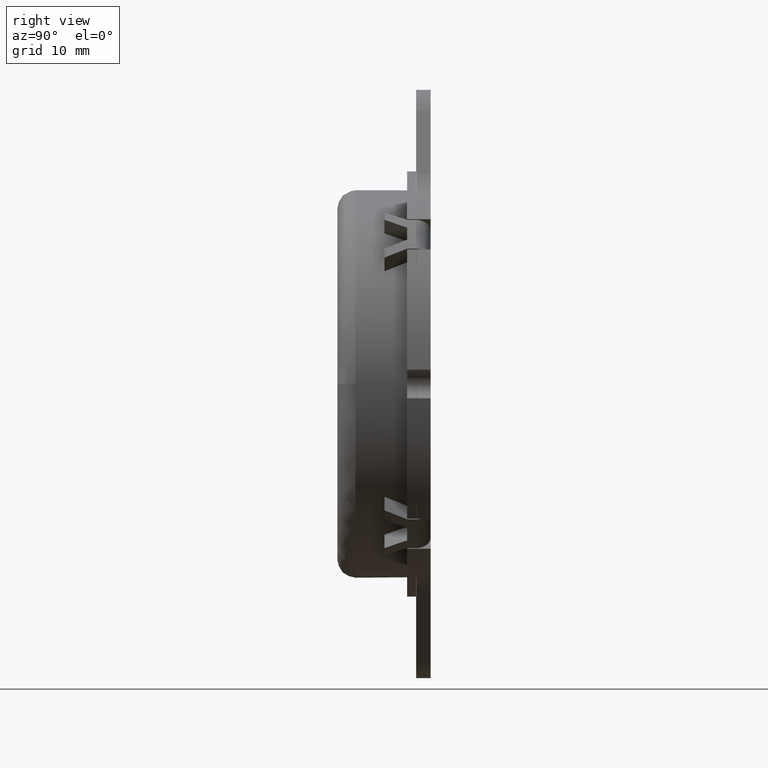
[diagram: clean part render]
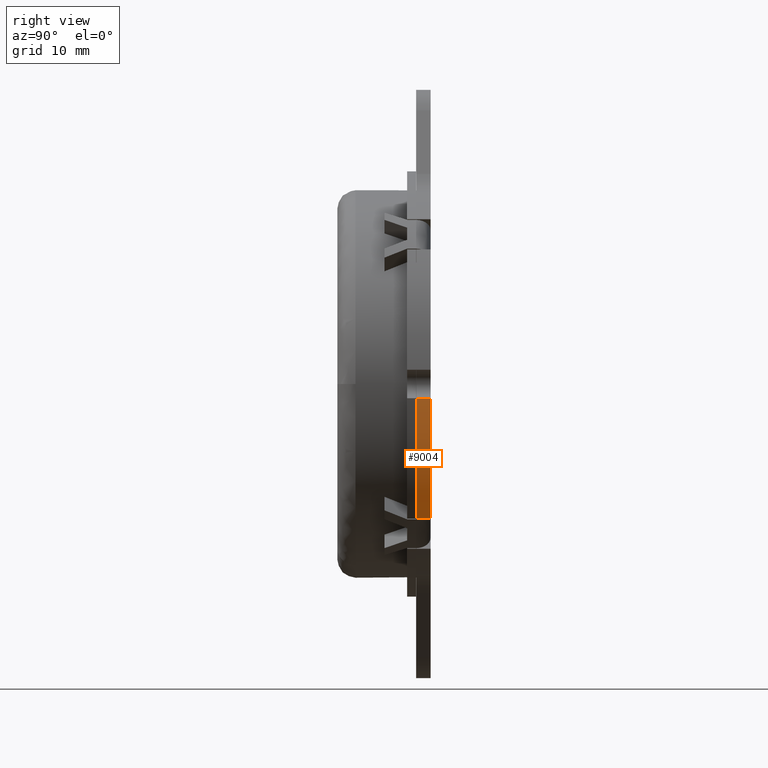
[diagram: same view with one face highlighted and labeled with its STEP entity id]
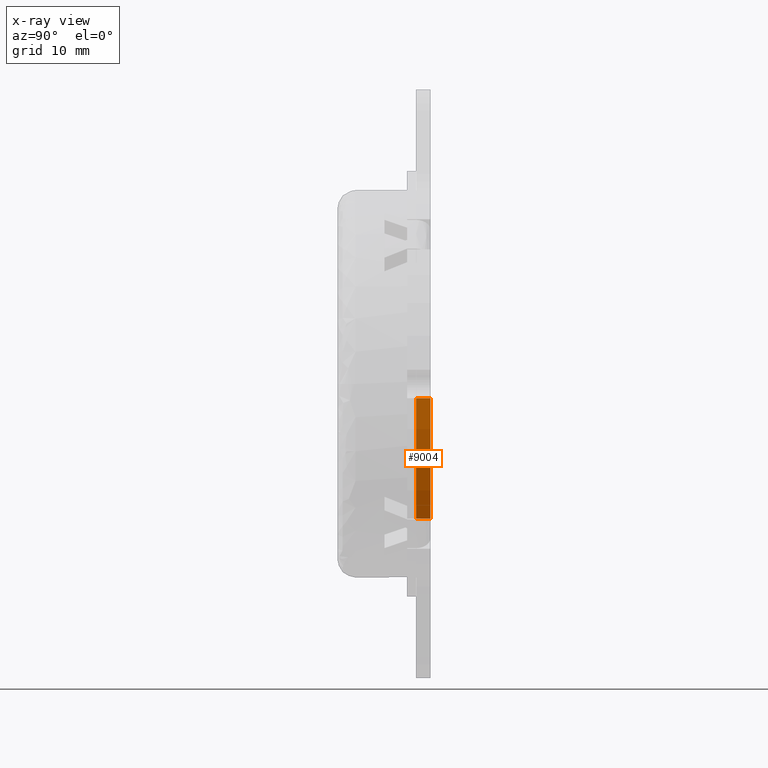
[diagram: x-ray of the same camera — body ghosted, the highlighted face saturated]
A machine part, right view. The second image highlights one B-rep face of the part: STEP entity #9004.
The next image is the same camera in x-ray: the body ghosted, the highlighted face saturated — about 0% of this face is hidden behind the body in this view.
In plain terms, the highlighted face is a freeform B-spline surface patch.
Its self-contained STEP definition (entity closure, byte-faithful):
#5013=CARTESIAN_POINT('',(18.195416489165201,-1.600005000000000,-14.872014617590160));
#5014=VERTEX_POINT('',#5013);
#5020=CARTESIAN_POINT('',(23.447028209247801,-1.600005000000000,-1.576980708423045));
#5021=VERTEX_POINT('',#5020);
#5022=CARTESIAN_POINT('',(18.195416489165190,-1.600005000000000,-14.872014617590160));
#5023=CARTESIAN_POINT('',(22.943551236547723,-1.600005000000000,-9.062829278764724));
#5024=CARTESIAN_POINT('',(23.447028209247790,-1.600005000000000,-1.576980708423053));
#5032=(BOUNDED_CURVE()B_SPLINE_CURVE(2,(#5022,#5023,#5024),.UNSPECIFIED.,.F.,.U.)CURVE()GEOMETRIC_REPRESENTATION_ITEM()QUASI_UNIFORM_CURVE()RATIONAL_B_SPLINE_CURVE((1.0,0.952626791242617,1.0))REPRESENTATION_ITEM(''));
#5033=EDGE_CURVE('',#5014,#5021,#5032,.T.);
#8530=CARTESIAN_POINT('',(23.447028209247801,0.0,-1.576980708423055));
#8531=VERTEX_POINT('',#8530);
#8537=CARTESIAN_POINT('',(18.195416489165201,0.0,-14.872014617590141));
#8538=VERTEX_POINT('',#8537);
#8539=CARTESIAN_POINT('',(18.195416489165190,0.0,-14.872014617590160));
#8540=CARTESIAN_POINT('',(22.943551236547723,0.0,-9.062829278764724));
#8541=CARTESIAN_POINT('',(23.447028209247790,0.0,-1.576980708423053));
#8549=(BOUNDED_CURVE()B_SPLINE_CURVE(2,(#8539,#8540,#8541),.UNSPECIFIED.,.F.,.U.)CURVE()GEOMETRIC_REPRESENTATION_ITEM()QUASI_UNIFORM_CURVE()RATIONAL_B_SPLINE_CURVE((1.0,0.952626791242617,1.0))REPRESENTATION_ITEM(''));
#8550=EDGE_CURVE('',#8538,#8531,#8549,.T.);
#8922=CARTESIAN_POINT('',(23.447028209247801,-1.600005000000000,-1.576980708423045));
#8923=CARTESIAN_POINT('',(23.447028209247801,0.0,-1.576980708423055));
#8924=QUASI_UNIFORM_CURVE('',1,(#8922,#8923),.UNSPECIFIED.,.F.,.U.);
#8925=EDGE_CURVE('',#5021,#8531,#8924,.T.);
#8936=CARTESIAN_POINT('',(18.195416489165201,0.0,-14.872014617590141));
#8937=CARTESIAN_POINT('',(18.195416489165201,-1.600005000000000,-14.872014617590160));
#8938=QUASI_UNIFORM_CURVE('',1,(#8936,#8937),.UNSPECIFIED.,.F.,.U.);
#8939=EDGE_CURVE('',#8538,#5014,#8938,.T.);
#8984=CARTESIAN_POINT('',(18.064942499966438,-1.640005125000000,-15.030231284744300));
#8985=CARTESIAN_POINT('',(18.064942499966438,0.041000128125000,-15.030231284744300));
#8986=CARTESIAN_POINT('',(23.189862929488068,-1.640005125000000,-8.870552759359137));
#8987=CARTESIAN_POINT('',(23.189862929488068,0.041000128125000,-8.870552759359137));
#8988=CARTESIAN_POINT('',(23.484146084398382,-1.640005125000001,-0.863065864599000));
#8989=CARTESIAN_POINT('',(23.484146084398382,0.041000128125000,-0.863065864599000));
#8997=(BOUNDED_SURFACE()B_SPLINE_SURFACE(1,2,((#8984,#8986,#8988),(#8985,#8987,#8989)),.UNSPECIFIED.,.F.,.F.,.U.)B_SPLINE_SURFACE_WITH_KNOTS((2,2),(3,3),(0.0,1.0),(0.0,15.585224871884551),.UNSPECIFIED.)GEOMETRIC_REPRESENTATION_ITEM()RATIONAL_B_SPLINE_SURFACE(((1.0,0.944652725252278,0.996118576589223),(1.0,0.944652725252278,0.996118576589223)))REPRESENTATION_ITEM('')SURFACE());
#8998=ORIENTED_EDGE('',*,*,#5033,.F.);
#8999=ORIENTED_EDGE('',*,*,#8939,.F.);
#9000=ORIENTED_EDGE('',*,*,#8550,.T.);
#9001=ORIENTED_EDGE('',*,*,#8925,.F.);
#9002=EDGE_LOOP('',(#8998,#8999,#9000,#9001));
#9003=FACE_OUTER_BOUND('',#9002,.T.);
#9004=ADVANCED_FACE('',(#9003),#8997,.T.);